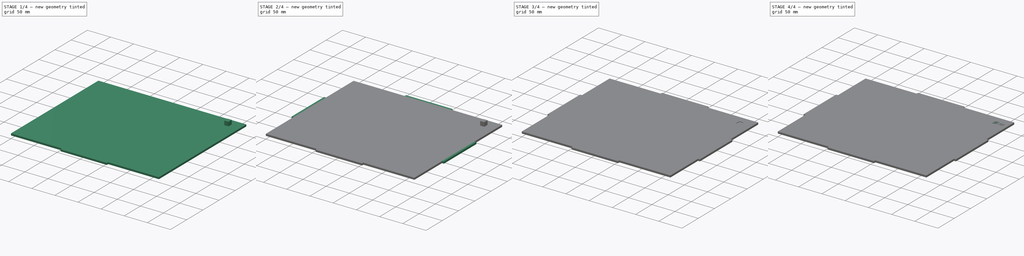
[diagram: build sequence overview — one tinted view per stage of 4, left to right]
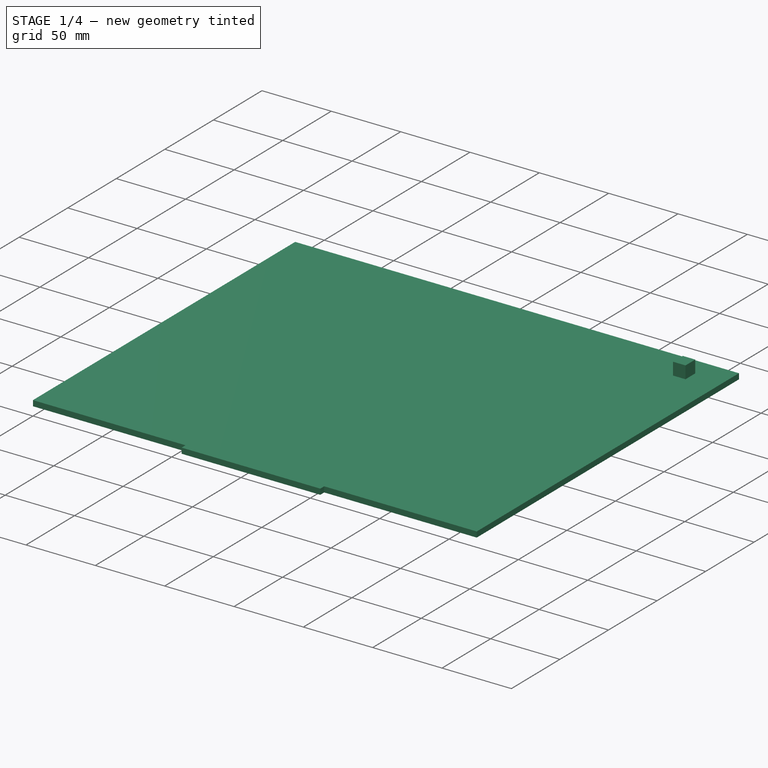
[diagram: stage 1 of 4 — iso view after this stage's code; geometry added in this stage tinted green]
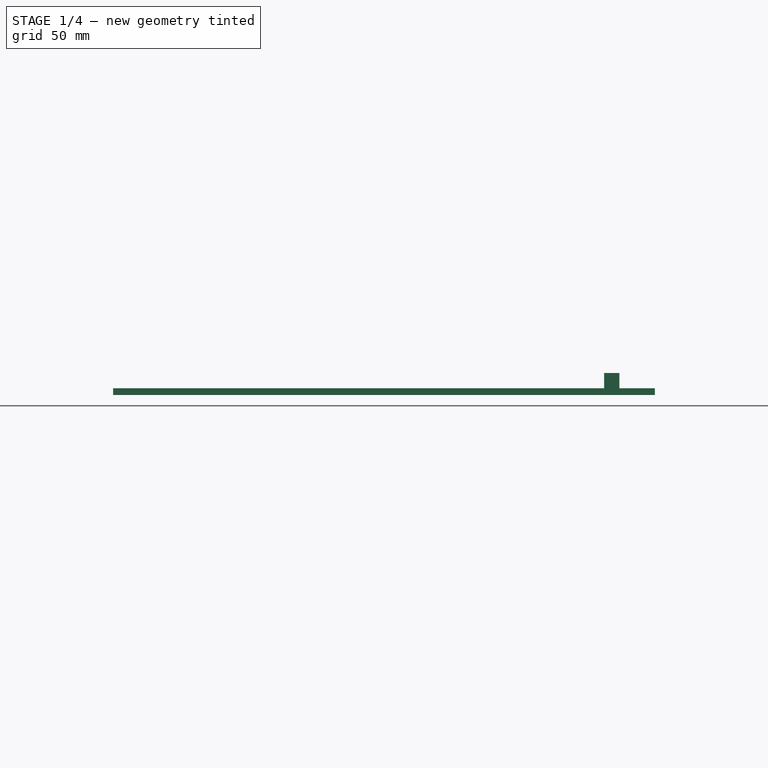
[diagram: stage 1 of 4 — front view after this stage's code; geometry added in this stage tinted green]
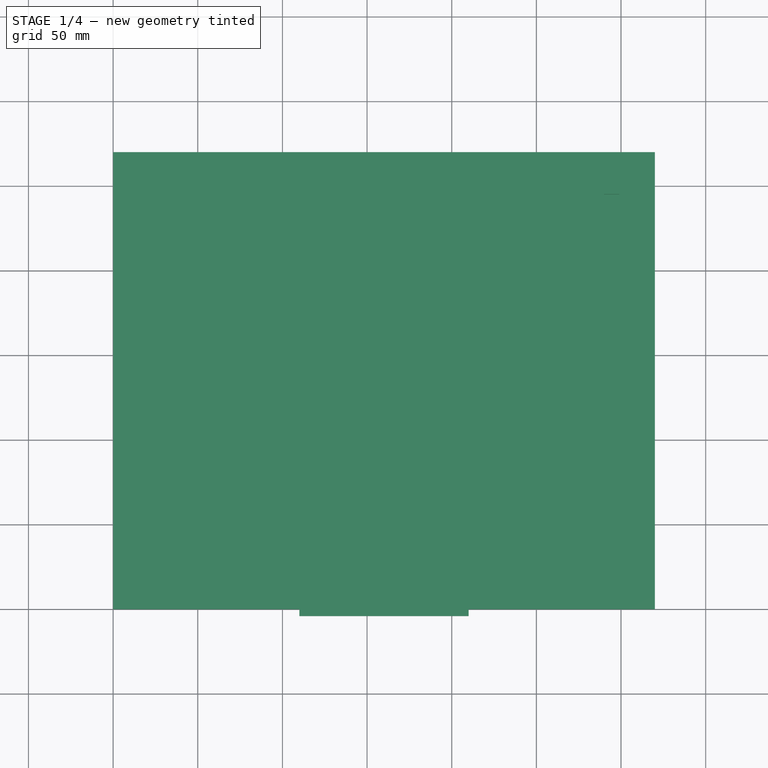
[diagram: stage 1 of 4 — top view after this stage's code; geometry added in this stage tinted green]
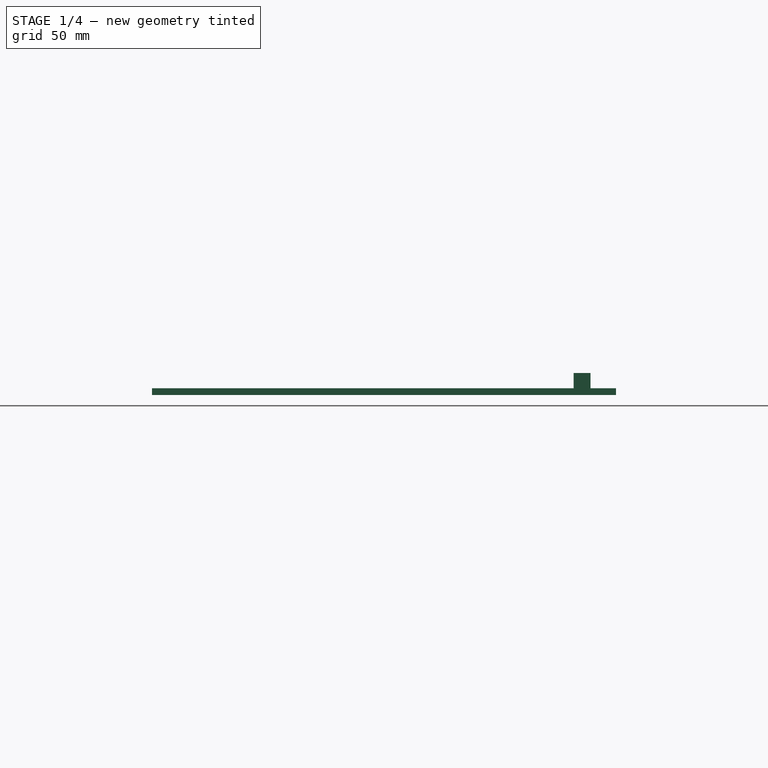
[diagram: stage 1 of 4 — right view after this stage's code; geometry added in this stage tinted green]
FCSTD DOCUMENT  (FreeCAD 0.14R3700 (Git))
Label: interFace-4mm(5)
License: CC-BY 3.0
LicenseURL: http://creativecommons.org/licenses/by/3.0/
objects: Sketcher::SketchObject×4, PartDesign::Pad×4, Part::MultiFuse×3, Part::Box×2, Part::Extrusion×2, Part::Cut×2
note: 21 computed .brp shape members not serialized (recipe doc carries the construction recipe); baked Part::Feature solids carry a one-line shape summary decoded from their .brp

FEATURE [Part::Box] Box  label="Cubo"
  Height = 4
  Length = 320
  Width = 270
FEATURE [Sketcher::SketchObject] Sketch
  Placement = pos=(0,0,0) rot=(1,0,0;1.5708rad)
  Support = -> Box [Face3]
  sketch-geometry (4):
    g0: LineSegment StartX=110 StartY=4 StartZ=0 EndX=210 EndY=4 EndZ=0
    g1: LineSegment StartX=210 StartY=4 StartZ=0 EndX=210 EndY=0 EndZ=0
    g2: LineSegment StartX=210 StartY=0 StartZ=0 EndX=110 EndY=0 EndZ=0
    g3: LineSegment StartX=110 StartY=0 StartZ=0 EndX=110 EndY=4 EndZ=0
  constraints (12):
    c: Coincident(g0,g1)
    c: Coincident(g1,g2)
    c: Coincident(g2,g3)
    c: Coincident(g3,g0)
    c: Horizontal(g0)
    c: Horizontal(g2)
    c: Vertical(g1)
    c: Vertical(g3)
    c: DistanceX(g0) = 100
    c: DistanceY(g3) = 4
    c: DistanceX(g-1,g3) = 110
    c: DistanceY(g-1,g2) = 0
FEATURE [PartDesign::Pad] Pad
  Length = 4
  Length2 = 100
  Sketch = -> Sketch
  Type = 0
FEATURE [Part::Box] Box001  label="Cubo001"
  Height = 10
  Length = 9
  Placement = pos=(290,245,3) rot=(0,0,1;0rad)
  Width = 10
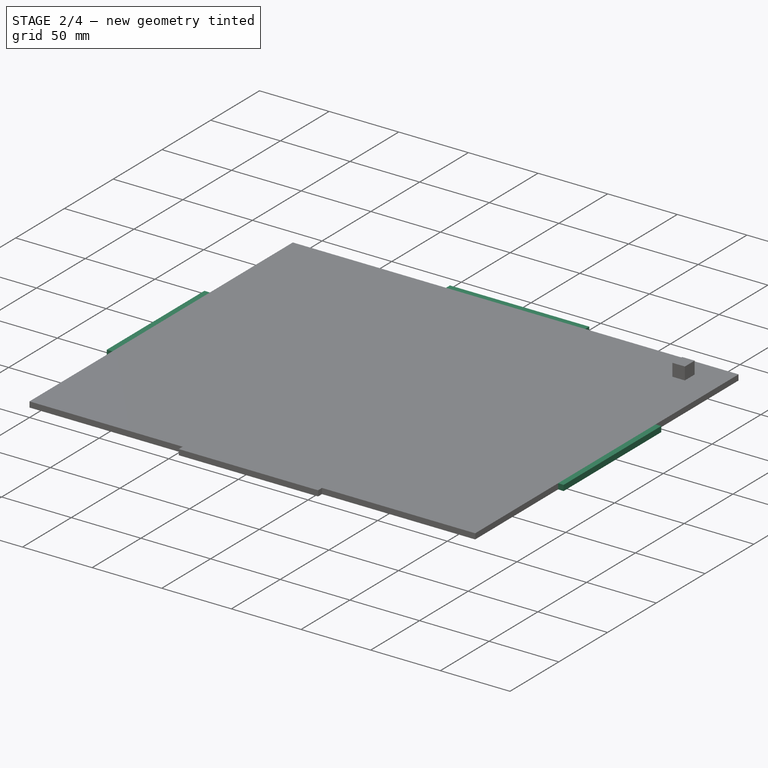
[diagram: stage 2 of 4 — iso view after this stage's code; geometry added in this stage tinted green]
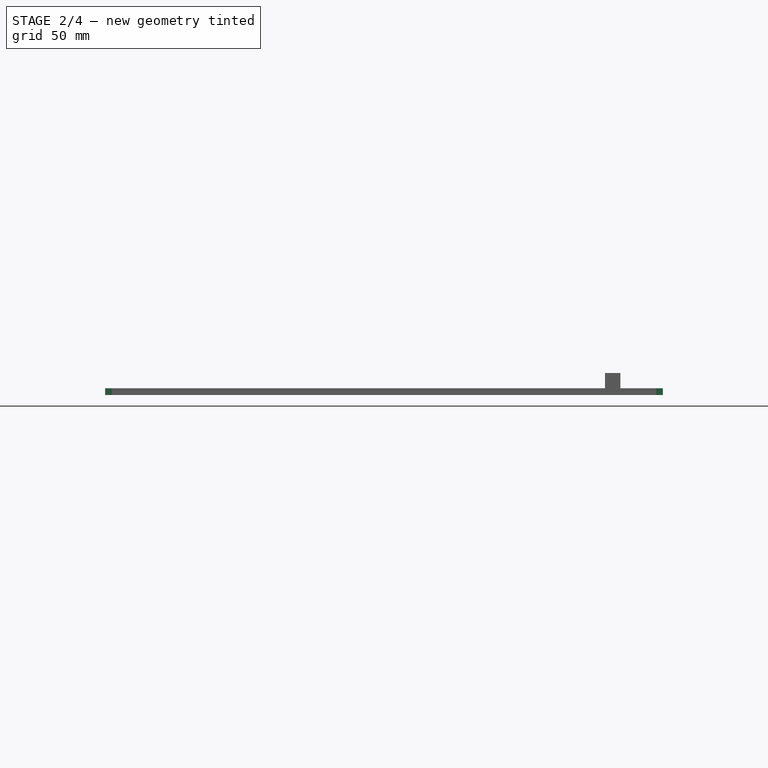
[diagram: stage 2 of 4 — front view after this stage's code; geometry added in this stage tinted green]
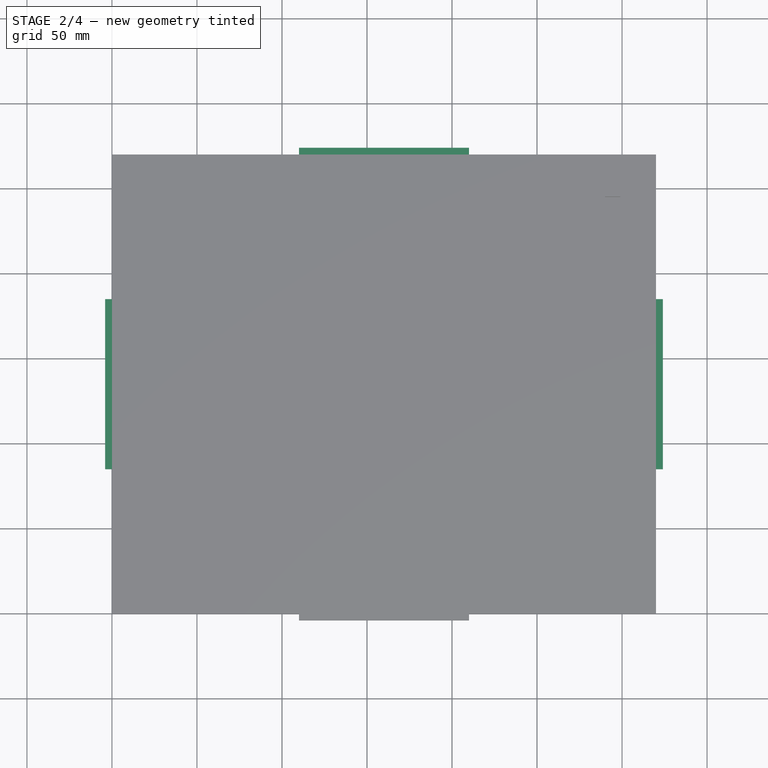
[diagram: stage 2 of 4 — top view after this stage's code; geometry added in this stage tinted green]
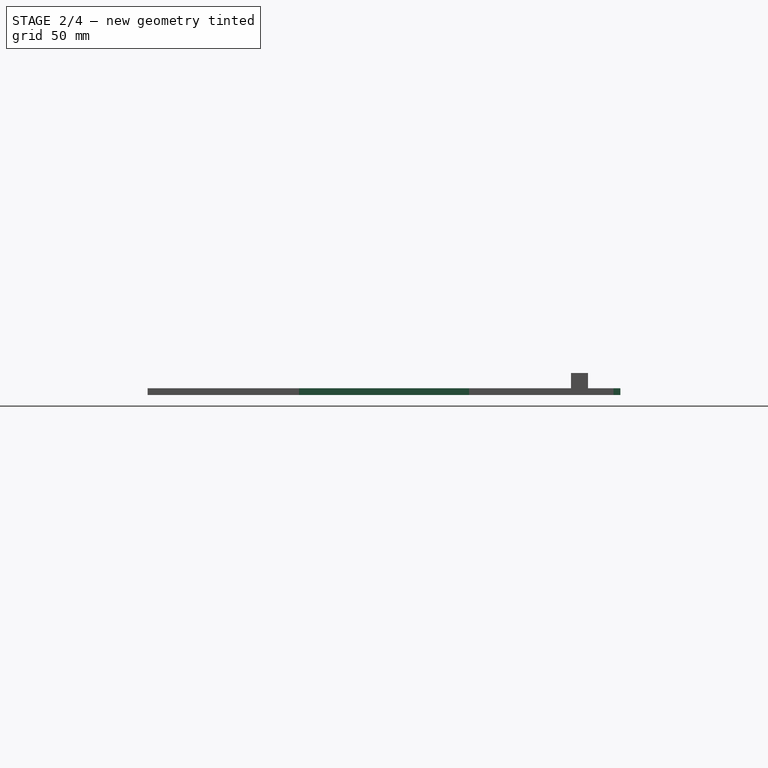
[diagram: stage 2 of 4 — right view after this stage's code; geometry added in this stage tinted green]
FEATURE [Sketcher::SketchObject] Sketch001
  Placement = pos=(0,270,0) rot=(0,0.707107,0.707107;3.14159rad)
  Support = -> Pad [Face3]
  sketch-geometry (4):
    g0: LineSegment StartX=-210 StartY=4 StartZ=0 EndX=-110 EndY=4 EndZ=0
    g1: LineSegment StartX=-110 StartY=4 StartZ=0 EndX=-110 EndY=0 EndZ=0
    g2: LineSegment StartX=-110 StartY=0 StartZ=0 EndX=-210 EndY=0 EndZ=0
    g3: LineSegment StartX=-210 StartY=0 StartZ=0 EndX=-210 EndY=4 EndZ=0
  constraints (12):
    c: Coincident(g0,g1)
    c: Coincident(g1,g2)
    c: Coincident(g2,g3)
    c: Coincident(g3,g0)
    c: Horizontal(g0)
    c: Horizontal(g2)
    c: Vertical(g1)
    c: Vertical(g3)
    c: DistanceX(g0) = 100
    c: DistanceY(g1) = -4
    c: DistanceX(g-1,g1) = -110
    c: DistanceY(g-1,g1) = 0
FEATURE [PartDesign::Pad] Pad001
  Length = 4
  Length2 = 100
  Sketch = -> Sketch001
  Type = 0
FEATURE [Sketcher::SketchObject] Sketch002
  Placement = pos=(320,0,0) rot=(0.57735,0.57735,0.57735;2.0944rad)
  Support = -> Pad001 [Face2]
  sketch-geometry (4):
    g0: LineSegment StartX=85 StartY=4 StartZ=0 EndX=185 EndY=4 EndZ=0
    g1: LineSegment StartX=185 StartY=4 StartZ=0 EndX=185 EndY=0 EndZ=0
    g2: LineSegment StartX=185 StartY=0 StartZ=0 EndX=85 EndY=0 EndZ=0
    g3: LineSegment StartX=85 StartY=0 StartZ=0 EndX=85 EndY=4 EndZ=0
  constraints (12):
    c: Coincident(g0,g1)
    c: Coincident(g1,g2)
    c: Coincident(g2,g3)
    c: Coincident(g3,g0)
    c: Horizontal(g0)
    c: Horizontal(g2)
    c: Vertical(g1)
    c: Vertical(g3)
    c: DistanceX(g0) = 100
    c: DistanceY(g3) = 4
    c: DistanceX(g-1,g2) = 85
    c: DistanceY(g-1,g2) = 0
FEATURE [PartDesign::Pad] Pad002
  Length = 4
  Length2 = 100
  Sketch = -> Sketch002
  Type = 0
FEATURE [Sketcher::SketchObject] Sketch003
  Placement = pos=(0,0,0) rot=(0.57735,-0.57735,-0.57735;2.0944rad)
  Support = -> Pad002 [Face1]
  sketch-geometry (4):
    g0: LineSegment StartX=-185 StartY=4 StartZ=0 EndX=-85 EndY=4 EndZ=0
    g1: LineSegment StartX=-85 StartY=4 StartZ=0 EndX=-85 EndY=0 EndZ=0
    g2: LineSegment StartX=-85 StartY=0 StartZ=0 EndX=-185 EndY=0 EndZ=0
    g3: LineSegment StartX=-185 StartY=0 StartZ=0 EndX=-185 EndY=4 EndZ=0
  constraints (12):
    c: Coincident(g0,g1)
    c: Coincident(g1,g2)
    c: Coincident(g2,g3)
    c: Coincident(g3,g0)
    c: Horizontal(g0)
    c: Horizontal(g2)
    c: Vertical(g1)
    c: Vertical(g3)
    c: DistanceX(g0) = 100
    c: DistanceY(g1) = -4
    c: DistanceX(g-1,g1) = -85
    c: DistanceY(g-1,g1) = 0
FEATURE [PartDesign::Pad] Pad003  label="interFace-4mm(5)sinP3D"
  Length = 4
  Length2 = 100
  Sketch = -> Sketch003
  Type = 0
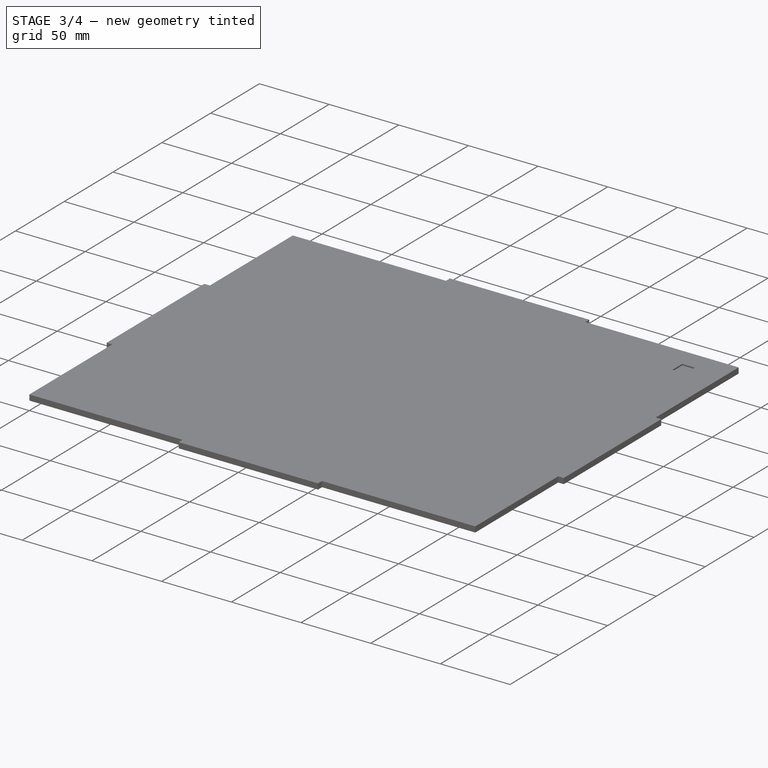
[diagram: stage 3 of 4 — iso view after this stage's code; geometry added in this stage tinted green]
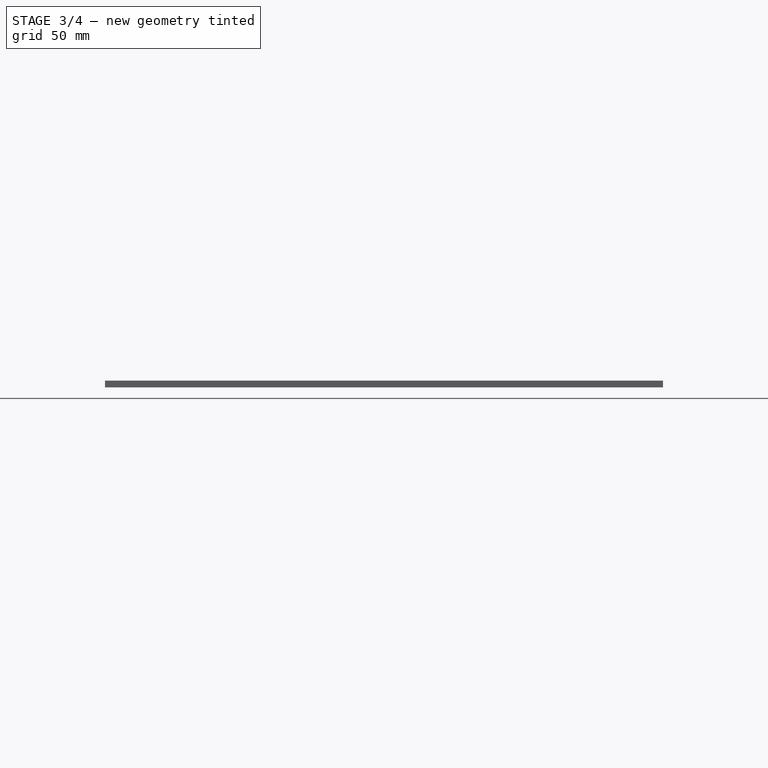
[diagram: stage 3 of 4 — front view after this stage's code; geometry added in this stage tinted green]
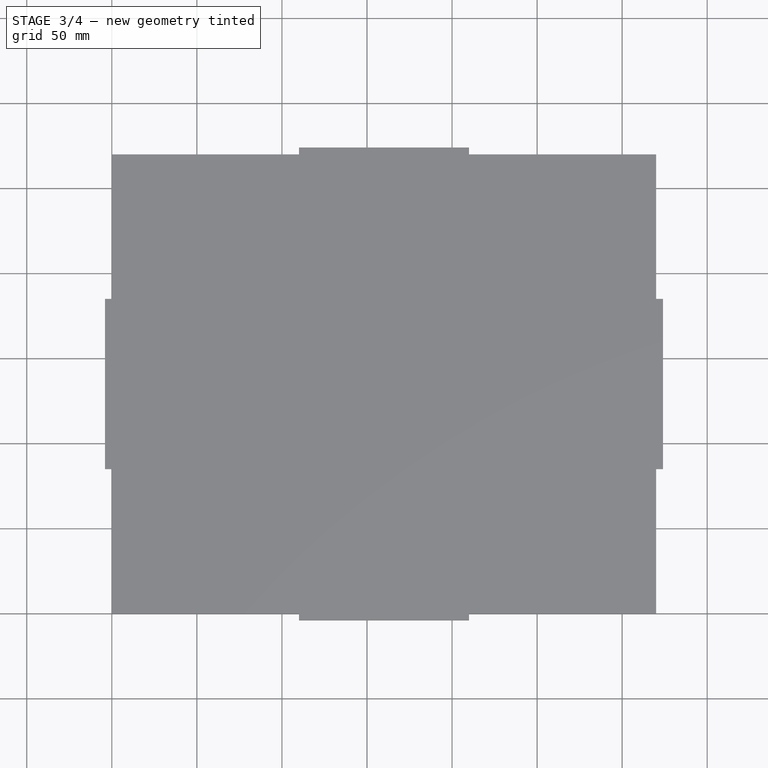
[diagram: stage 3 of 4 — top view after this stage's code; geometry added in this stage tinted green]
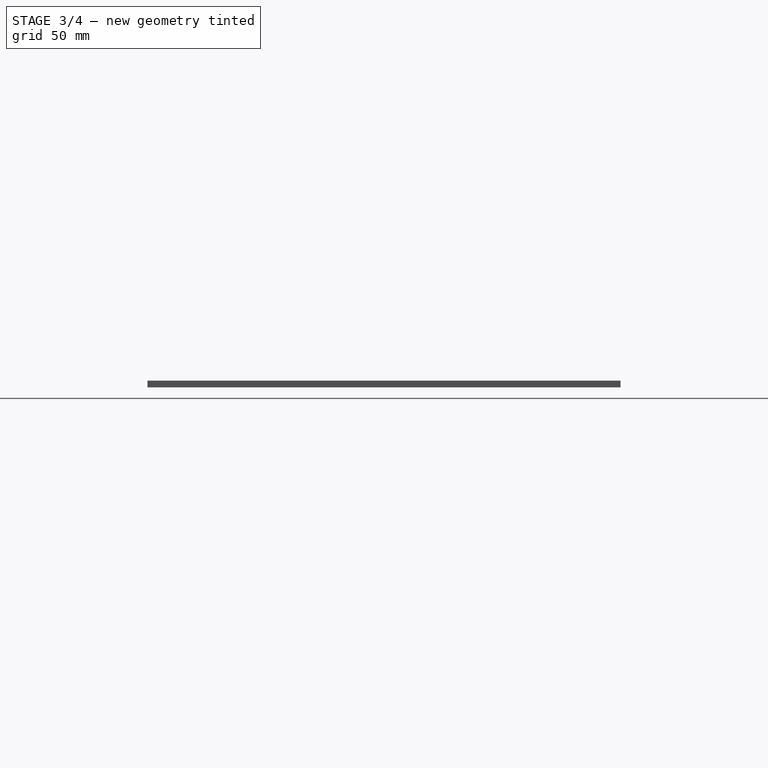
[diagram: stage 3 of 4 — right view after this stage's code; geometry added in this stage tinted green]
FEATURE [Part::MultiFuse] Fusion
FEATURE [Part::Extrusion] Extrude  label="texto3D"
  Base = -> Fusion
  Dir = (0,0,1)
  Placement = pos=(300,250,3) rot=(0,0,1;0rad)
  Solid = true
FEATURE [Part::Cut] Cut
  Base = -> Pad003
  Tool = -> Box001
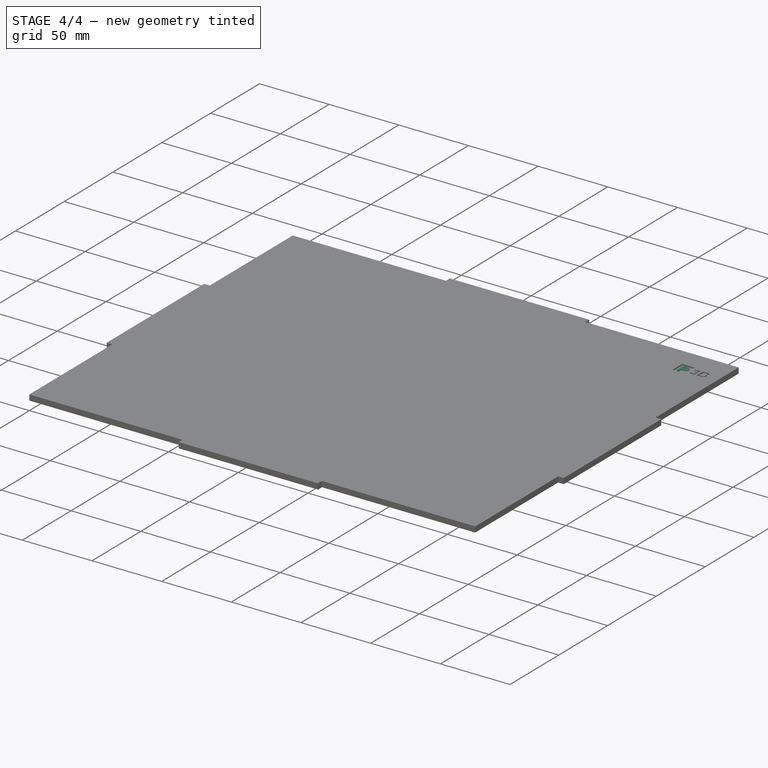
[diagram: stage 4 of 4 — iso view after this stage's code; geometry added in this stage tinted green]
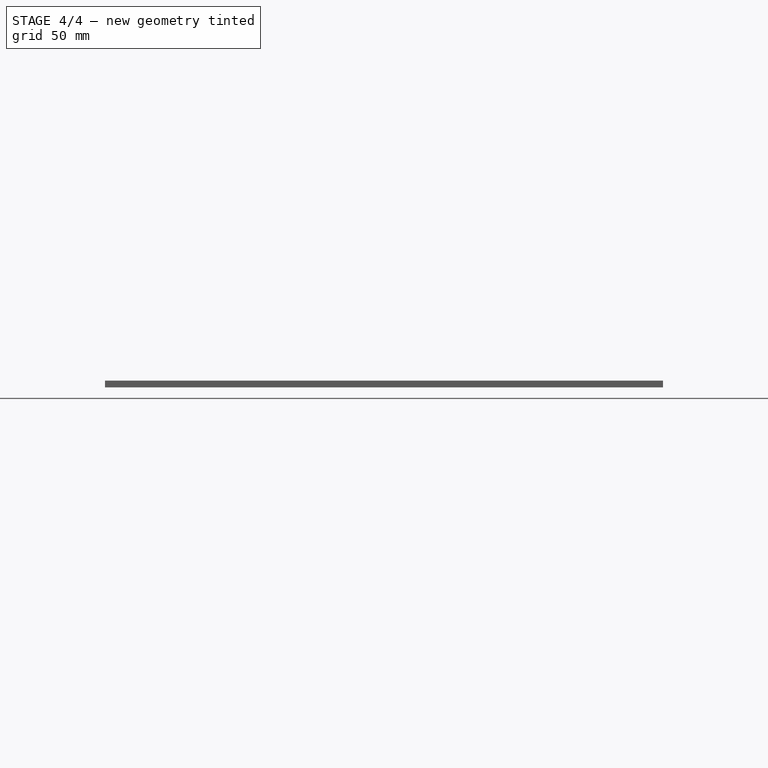
[diagram: stage 4 of 4 — front view after this stage's code; geometry added in this stage tinted green]
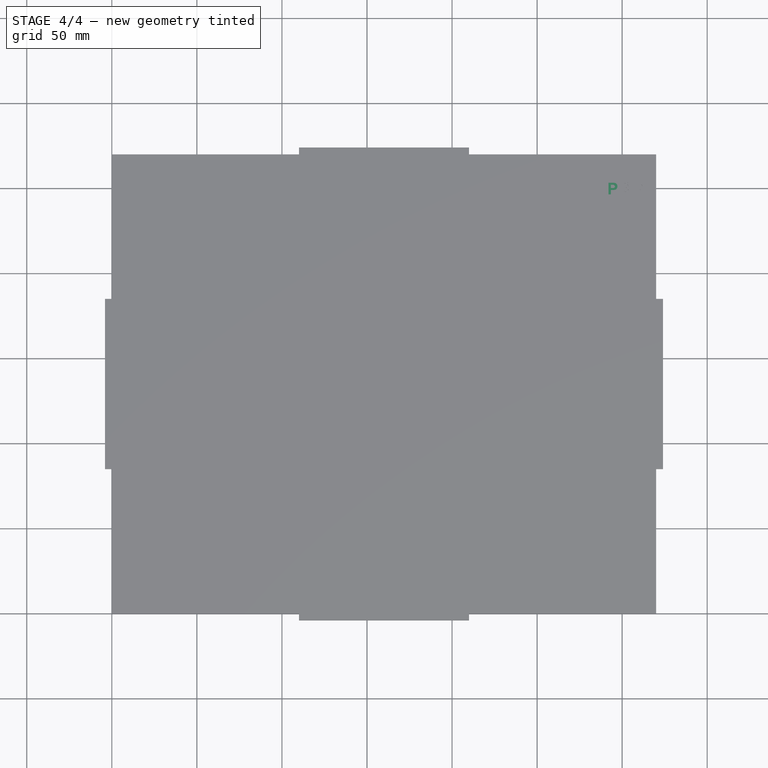
[diagram: stage 4 of 4 — top view after this stage's code; geometry added in this stage tinted green]
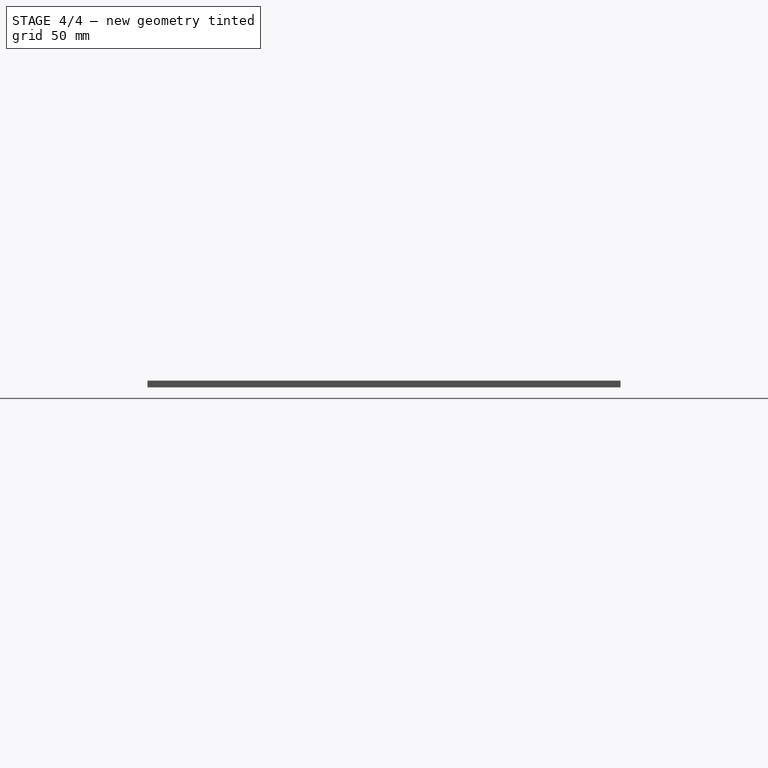
[diagram: stage 4 of 4 — right view after this stage's code; geometry added in this stage tinted green]
FEATURE [Part::MultiFuse] Fusion001
FEATURE [Part::Extrusion] Extrude001  label="textoP"
  Base = -> Fusion001
  Dir = (0,0,1)
  Placement = pos=(300,250,3) rot=(0,0,1;0rad)
  Solid = true
FEATURE [Part::Cut] Cut001
  Base = -> Cut
  Tool = -> Extrude
FEATURE [Part::MultiFuse] Fusion002  label="interFace-4mm(5)"
  Shapes = -> [Cut001,Extrude001]
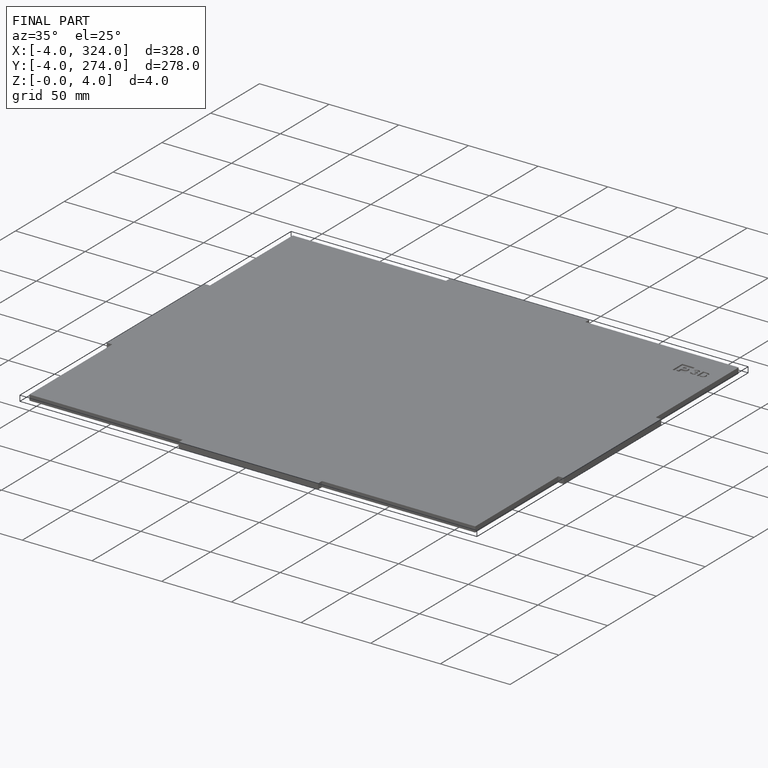
[diagram: finished part — iso view with bounding-box wireframe]
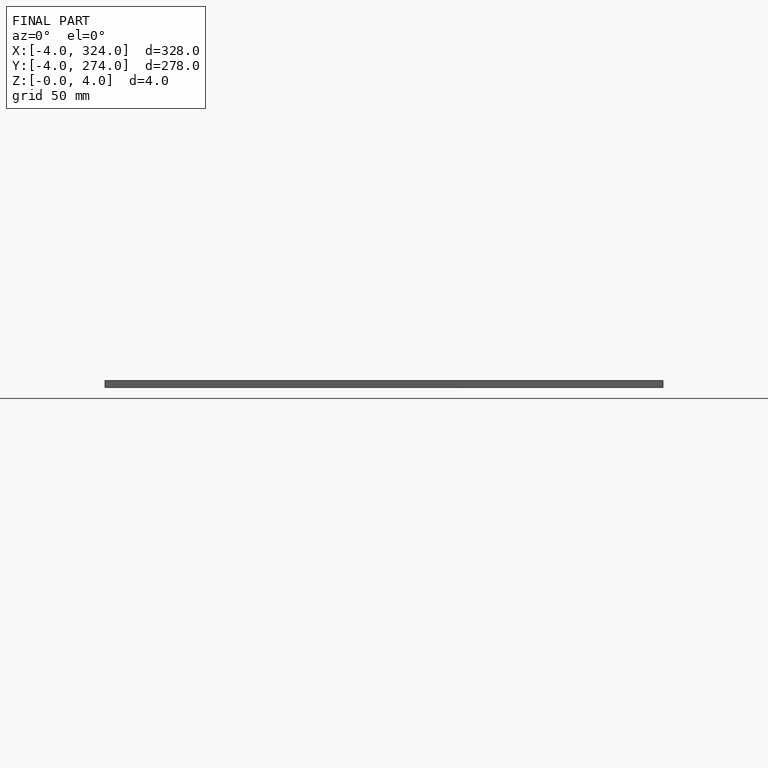
[diagram: finished part — front view with bounding-box wireframe]
